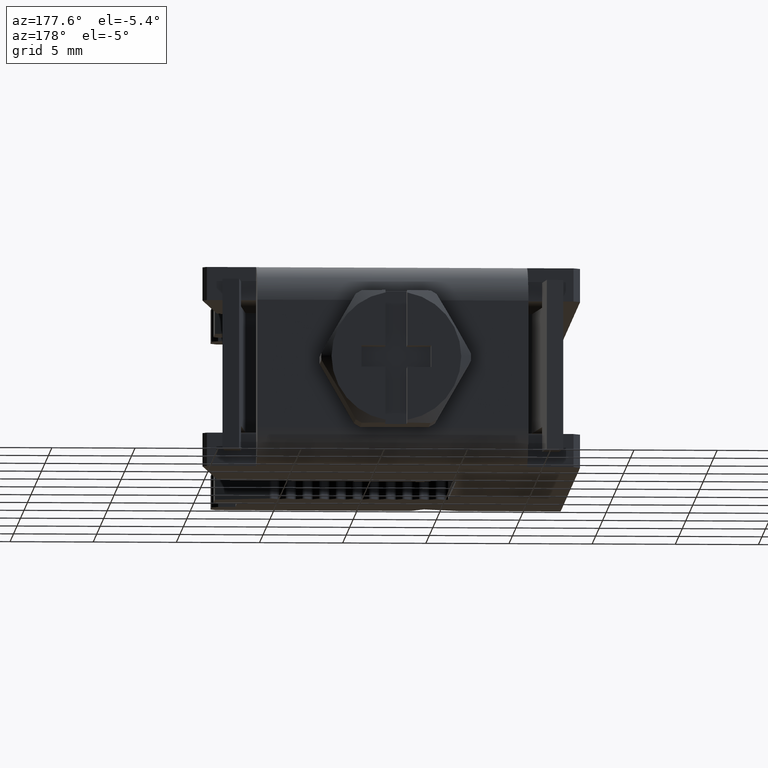
[diagram: clean part render]
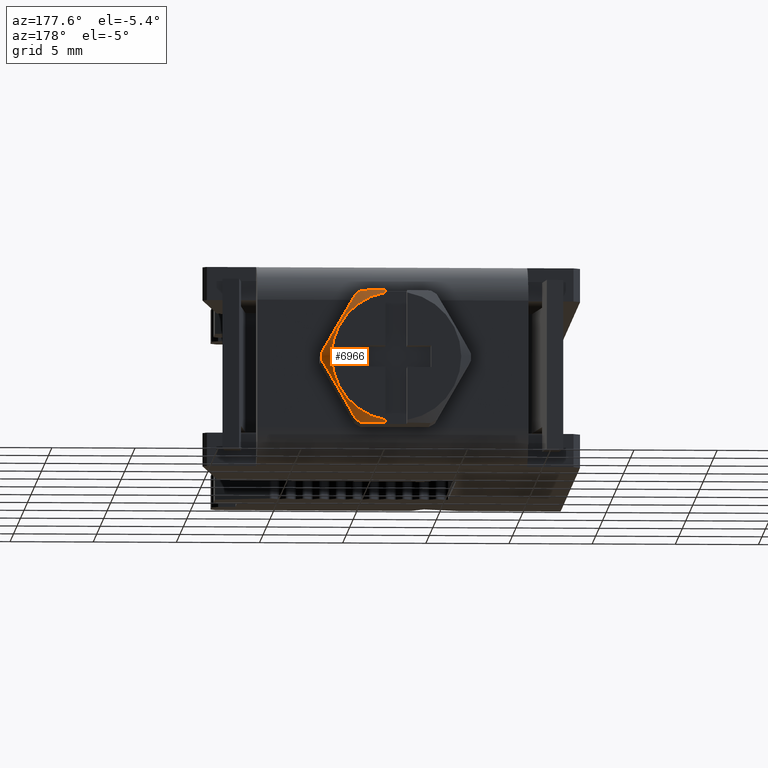
[diagram: same view with one face highlighted and labeled with its STEP entity id]
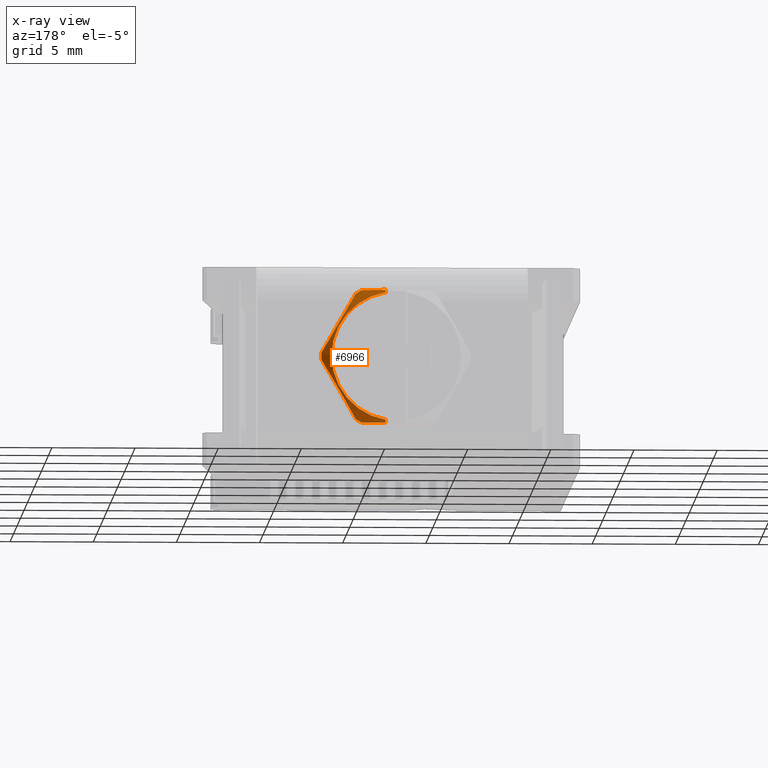
[diagram: x-ray of the same camera — body ghosted, the highlighted face saturated]
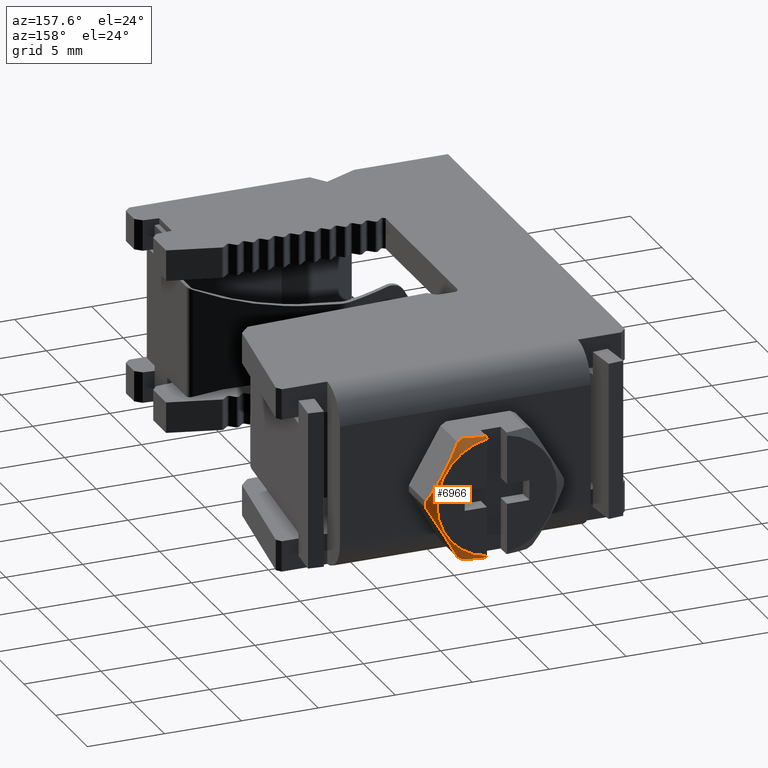
[diagram: same view with one face highlighted and labeled with its STEP entity id]
A machine part, auxiliary view. The second image highlights one B-rep face of the part: STEP entity #6966.
The next image is the same camera in x-ray: the body ghosted, the highlighted face saturated — about 0% of this face is hidden behind the body in this view.
A second angle (auxiliary view) of the same face is appended — the face is thin or edge-on in the first view.
In plain terms, the highlighted conical surface has half-angle 60 deg.
Its self-contained STEP definition (entity closure, byte-faithful):
#664 = CARTESIAN_POINT ( 'NONE',  ( 8.821278230129213000, 33.58192324941455800, 6.000000000000000000 ) ) ;
#669 = DIRECTION ( 'NONE',  ( 0.0000000000000000000, 0.0000000000000000000, -1.000000000000000000 ) ) ;
#673 = FACE_OUTER_BOUND ( 'NONE', #5635, .T. ) ;
#675 = DIRECTION ( 'NONE',  ( 0.0000000000000000000, -1.000000000000000000, 0.0000000000000000000 ) ) ;
#1050 = AXIS2_PLACEMENT_3D ( 'NONE', #5268, #5253, #5282 ) ;
#1054 = CIRCLE ( 'NONE', #1050, 3.900000000015552400 ) ;
#1065 = AXIS2_PLACEMENT_3D ( 'NONE', #5213, #5219, #5206 ) ;
#1069 = CIRCLE ( 'NONE', #1065, 4.500000000000947700 ) ;
#1081 = CIRCLE ( 'NONE', #1089, 4.499999999978626900 ) ;
#1089 = AXIS2_PLACEMENT_3D ( 'NONE', #3513, #3500, #3496 ) ;
#1833 = VERTEX_POINT ( 'NONE', #4353 ) ;
#2839 = VERTEX_POINT ( 'NONE', #4631 ) ;
#2857 = VERTEX_POINT ( 'NONE', #4604 ) ;
#2869 = VERTEX_POINT ( 'NONE', #4617 ) ;
#2878 = VERTEX_POINT ( 'NONE', #4618 ) ;
#2894 = VERTEX_POINT ( 'NONE', #4614 ) ;
#2933 = VERTEX_POINT ( 'NONE', #4714 ) ;
#2992 = EDGE_CURVE ( 'NONE', #6257, #6230, #10858, .T. ) ;
#3099 = EDGE_CURVE ( 'NONE', #6256, #1833, #10851, .T. ) ;
#3140 = EDGE_CURVE ( 'NONE', #2933, #2894, #1069, .T. ) ;
#3147 = EDGE_CURVE ( 'NONE', #1833, #6257, #1054, .T. ) ;
#3154 = EDGE_CURVE ( 'NONE', #2878, #2933, #10863, .T. ) ;
#3157 = EDGE_CURVE ( 'NONE', #2894, #2869, #10879, .T. ) ;
#3202 = EDGE_CURVE ( 'NONE', #2839, #6256, #10872, .T. ) ;
#3214 = EDGE_CURVE ( 'NONE', #2857, #2869, #1081, .T. ) ;
#3237 = EDGE_CURVE ( 'NONE', #2857, #6230, #10864, .T. ) ;
#3283 = EDGE_CURVE ( 'NONE', #2839, #2878, #7882, .T. ) ;
#3443 = CARTESIAN_POINT ( 'NONE',  ( 9.471278230129254200, 33.84030574862037400, 1.999999999997273100 ) ) ;
#3457 = CARTESIAN_POINT ( 'NONE',  ( 9.949455680716930300, 33.79602426264559500, 1.999999999997332100 ) ) ;
#3460 = CARTESIAN_POINT ( 'NONE',  ( 10.41900447984197200, 33.70460414583747900, 1.999999999997332100 ) ) ;
#3469 = CARTESIAN_POINT ( 'NONE',  ( 10.88283104293212100, 33.58192324939091800, 1.999999999997332100 ) ) ;
#3496 = DIRECTION ( 'NONE',  ( 0.0000000000000000000, 0.0000000000000000000, -1.000000000000000000 ) ) ;
#3500 = DIRECTION ( 'NONE',  ( -0.0000000000000000000, 1.000000000000000000, -0.0000000000000000000 ) ) ;
#3513 = CARTESIAN_POINT ( 'NONE',  ( 8.821278230129213000, 33.58192324941455800, 6.000000000000000000 ) ) ;
#3525 = CARTESIAN_POINT ( 'NONE',  ( 10.88283104291984300, 33.58192324940834100, 9.999999999997456300 ) ) ;
#3529 = CARTESIAN_POINT ( 'NONE',  ( 9.949455680717692400, 33.79602426264800400, 9.999999999997456300 ) ) ;
#3530 = CARTESIAN_POINT ( 'NONE',  ( 9.471278230134144500, 33.84030574862281100, 9.999999999997655200 ) ) ;
#3542 = CARTESIAN_POINT ( 'NONE',  ( 10.41900447983586100, 33.70460414583801900, 9.999999999992072100 ) ) ;
#3741 = DIRECTION ( 'NONE',  ( 0.0000000000000000000, 0.0000000000000000000, 1.000000000000000000 ) ) ;
#3753 = DIRECTION ( 'NONE',  ( -0.0000000000000000000, -1.000000000000000000, -0.0000000000000000000 ) ) ;
#3756 = CARTESIAN_POINT ( 'NONE',  ( 8.821278230129213000, 33.58192324937968500, 6.000000000000000000 ) ) ;
#4033 = CARTESIAN_POINT ( 'NONE',  ( 9.471278230134144500, 33.84030574862281100, 9.999999999997655200 ) ) ;
#4056 = CARTESIAN_POINT ( 'NONE',  ( 9.471278230129254200, 33.84030574862037400, 1.999999999997273100 ) ) ;
#4061 = CARTESIAN_POINT ( 'NONE',  ( 9.471278230132915300, 33.92833341092717300, 9.845451859029280300 ) ) ;
#4353 = CARTESIAN_POINT ( 'NONE',  ( 9.471278230129307500, 33.92833341092769900, 2.154548140971020800 ) ) ;
#4604 = CARTESIAN_POINT ( 'NONE',  ( 10.88283104291984300, 33.58192324940834100, 9.999999999997456300 ) ) ;
#4614 = CARTESIAN_POINT ( 'NONE',  ( 13.31615625167247100, 33.58192324939094000, 6.214642892858945400 ) ) ;
#4617 = CARTESIAN_POINT ( 'NONE',  ( 11.25460343887922200, 33.58192324941271100, 9.785357107103385100 ) ) ;
#4618 = CARTESIAN_POINT ( 'NONE',  ( 11.25460343886228100, 33.58192324939060600, 2.214642892862840600 ) ) ;
#4631 = CARTESIAN_POINT ( 'NONE',  ( 10.88283104293212100, 33.58192324939091800, 1.999999999997332100 ) ) ;
#4714 = CARTESIAN_POINT ( 'NONE',  ( 13.31615625167136800, 33.58192324939071200, 5.785357107134762700 ) ) ;
#4744 = CARTESIAN_POINT ( 'NONE',  ( 9.471278230132915300, 33.89900275436227900, 9.896974680812700600 ) ) ;
#4745 = CARTESIAN_POINT ( 'NONE',  ( 9.471278230134144500, 33.84030574862281100, 9.999999999997655200 ) ) ;
#4779 = CARTESIAN_POINT ( 'NONE',  ( 9.471278230132915300, 33.92833341092717300, 9.845451859029280300 ) ) ;
#4784 = CARTESIAN_POINT ( 'NONE',  ( 9.471278230132915300, 33.86965974819889200, 9.948490473824865200 ) ) ;
#5075 = CARTESIAN_POINT ( 'NONE',  ( 9.471278230129254200, 33.84030574862037400, 1.999999999997273100 ) ) ;
#5077 = CARTESIAN_POINT ( 'NONE',  ( 9.471278230129307500, 33.86965974820165600, 2.051509526179383400 ) ) ;
#5078 = CARTESIAN_POINT ( 'NONE',  ( 9.471278230129307500, 33.89900275436417600, 2.103025319190031400 ) ) ;
#5089 = CARTESIAN_POINT ( 'NONE',  ( 9.471278230129307500, 33.92833341092769900, 2.154548140971020800 ) ) ;
#5206 = DIRECTION ( 'NONE',  ( 1.079383496163119400E-014, 0.0000000000000000000, 1.000000000000000000 ) ) ;
#5213 = CARTESIAN_POINT ( 'NONE',  ( 8.821278230129213000, 33.58192324938006800, 6.000000000000000000 ) ) ;
#5219 = DIRECTION ( 'NONE',  ( -0.0000000000000000000, -1.000000000000000000, -0.0000000000000000000 ) ) ;
#5250 = CARTESIAN_POINT ( 'NONE',  ( 13.31615625167136800, 33.58192324939071200, 5.785357107134762700 ) ) ;
#5253 = DIRECTION ( 'NONE',  ( 0.0000000000000000000, -1.000000000000000000, 0.0000000000000000000 ) ) ;
#5254 = CARTESIAN_POINT ( 'NONE',  ( 12.63154279095754300, 33.84420013413067400, 4.599571809632841700 ) ) ;
#5256 = CARTESIAN_POINT ( 'NONE',  ( 13.31615625167247100, 33.58192324939094000, 6.214642892858945400 ) ) ;
#5257 = CARTESIAN_POINT ( 'NONE',  ( 12.63674493811311800, 33.86991431142371300, 7.391417807180848100 ) ) ;
#5261 = CARTESIAN_POINT ( 'NONE',  ( 12.45597968253062700, 33.87093544856855900, 4.295487585902699300 ) ) ;
#5262 = CARTESIAN_POINT ( 'NONE',  ( 12.97640848464374100, 33.74424888069909700, 5.196896712884831800 ) ) ;
#5263 = CARTESIAN_POINT ( 'NONE',  ( 12.11478000801435500, 33.87093544857088300, 8.295487585881048200 ) ) ;
#5264 = CARTESIAN_POINT ( 'NONE',  ( 11.93401475242737000, 33.86991431142459400, 3.391417807194707600 ) ) ;
#5266 = CARTESIAN_POINT ( 'NONE',  ( 11.93921689958882300, 33.84420013413451000, 8.599571809608800500 ) ) ;
#5268 = CARTESIAN_POINT ( 'NONE',  ( 8.821278230129213000, 33.92833341092682500, 6.000000000000000000 ) ) ;
#5269 = CARTESIAN_POINT ( 'NONE',  ( 11.25460343886228100, 33.58192324939060600, 2.214642892862840600 ) ) ;
#5273 = CARTESIAN_POINT ( 'NONE',  ( 12.97845026190627700, 33.76056792761401200, 6.799566825142186100 ) ) ;
#5281 = CARTESIAN_POINT ( 'NONE',  ( 11.59230942862040300, 33.76056792761484400, 2.799566825156707800 ) ) ;
#5282 = DIRECTION ( 'NONE',  ( 0.0000000000000000000, 0.0000000000000000000, -1.000000000000000000 ) ) ;
#5284 = CARTESIAN_POINT ( 'NONE',  ( 13.14696648870907200, 33.67142373703978100, 5.492311841563526400 ) ) ;
#5305 = CARTESIAN_POINT ( 'NONE',  ( 11.25460343887922200, 33.58192324941271100, 9.785357107103385100 ) ) ;
#5309 = CARTESIAN_POINT ( 'NONE',  ( 11.42379320183826300, 33.67142373704751200, 9.492311841537793200 ) ) ;
#5325 = CARTESIAN_POINT ( 'NONE',  ( 11.59435120590523900, 33.74424888070629400, 9.196896712856251100 ) ) ;
#5635 = EDGE_LOOP ( 'NONE', ( #6376, #6388, #6401, #6352, #6353, #6370, #6368, #6385, #6361, #6346 ) ) ;
#6230 = VERTEX_POINT ( 'NONE', #4033 ) ;
#6256 = VERTEX_POINT ( 'NONE', #4056 ) ;
#6257 = VERTEX_POINT ( 'NONE', #4061 ) ;
#6346 = ORIENTED_EDGE ( 'NONE', *, *, #3214, .T. ) ;
#6352 = ORIENTED_EDGE ( 'NONE', *, *, #3283, .F. ) ;
#6353 = ORIENTED_EDGE ( 'NONE', *, *, #3202, .T. ) ;
#6361 = ORIENTED_EDGE ( 'NONE', *, *, #3237, .F. ) ;
#6368 = ORIENTED_EDGE ( 'NONE', *, *, #3147, .T. ) ;
#6370 = ORIENTED_EDGE ( 'NONE', *, *, #3099, .T. ) ;
#6376 = ORIENTED_EDGE ( 'NONE', *, *, #3157, .F. ) ;
#6385 = ORIENTED_EDGE ( 'NONE', *, *, #2992, .T. ) ;
#6388 = ORIENTED_EDGE ( 'NONE', *, *, #3140, .F. ) ;
#6401 = ORIENTED_EDGE ( 'NONE', *, *, #3154, .F. ) ;
#6966 = ADVANCED_FACE ( 'NONE', ( #673 ), #8301, .T. ) ;
#7882 = CIRCLE ( 'NONE', #7896, 4.500000000000947700 ) ;
#7896 = AXIS2_PLACEMENT_3D ( 'NONE', #3756, #3753, #3741 ) ;
#8290 = AXIS2_PLACEMENT_3D ( 'NONE', #664, #675, #669 ) ;
#8301 = CONICAL_SURFACE ( 'NONE', #8290, 4.499999999978626900, 1.047197551171834300 ) ;
#10851 = B_SPLINE_CURVE_WITH_KNOTS ( 'NONE', 3,
 ( #5075, #5077, #5078, #5089 ),
 .UNSPECIFIED., .F., .F.,
 ( 4, 4 ),
 ( 7.144028522217821800E-017, 0.0001778594872638477300 ),
 .UNSPECIFIED. ) ;
#10858 = B_SPLINE_CURVE_WITH_KNOTS ( 'NONE', 3,
 ( #4779, #4744, #4784, #4745 ),
 .UNSPECIFIED., .F., .F.,
 ( 4, 4 ),
 ( 7.117695356441313700E-016, 0.0001778594872583535800 ),
 .UNSPECIFIED. ) ;
#10863 = B_SPLINE_CURVE_WITH_KNOTS ( 'NONE', 3,
 ( #5269, #5281, #5264, #5261, #5254, #5262, #5284, #5250 ),
 .UNSPECIFIED., .F., .F.,
 ( 4, 2, 2, 4 ),
 ( 4.124417792258649700E-015, 0.002074323434401699000, 0.003111485151600484100, 0.004148646868799269300 ),
 .UNSPECIFIED. ) ;
#10864 = B_SPLINE_CURVE_WITH_KNOTS ( 'NONE', 3,
 ( #3525, #3542, #3529, #3530 ),
 .UNSPECIFIED., .F., .F.,
 ( 4, 4 ),
 ( 2.146621297342975200E-015, 0.001435006222700688100 ),
 .UNSPECIFIED. ) ;
#10872 = B_SPLINE_CURVE_WITH_KNOTS ( 'NONE', 3,
 ( #3469, #3460, #3457, #3443 ),
 .UNSPECIFIED., .F., .F.,
 ( 4, 4 ),
 ( 1.035374178949706400E-015, 0.001435006222717093600 ),
 .UNSPECIFIED. ) ;
#10879 = B_SPLINE_CURVE_WITH_KNOTS ( 'NONE', 3,
 ( #5256, #5273, #5257, #5263, #5266, #5325, #5309, #5305 ),
 .UNSPECIFIED., .F., .F.,
 ( 4, 2, 2, 4 ),
 ( 3.594532063469716400E-015, 0.002074323434383915900, 0.003111485151574077700, 0.004148646868764240000 ),
 .UNSPECIFIED. ) ;